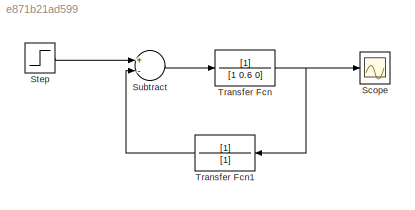
MODEL slx_e871b21ad599
KIND model
BLOCK [Scope] Scope
  Floating = off
  NumInputPorts = 1
  Ports = [1]
  ShowLegends = off
BLOCK [Step] Step
  Before = -2
  SampleTime = 0
  Time = .1
BLOCK [Sum] Subtract
  InputSameDT = off
  Inputs = +-
  OutDataTypeStr = Inherit: Inherit via internal rule
  Ports = [2, 1]
  SaturateOnIntegerOverflow = off
BLOCK [TransferFcn] Transfer Fcn
  Denominator = [1 0.6 0]
BLOCK [TransferFcn] Transfer Fcn1
  Denominator = [1]
LINE Step:1 -> Subtract:1
LINE Subtract:1 -> Transfer Fcn:1
LINE Transfer Fcn1:1 -> Subtract:2
NET Transfer Fcn:1 -> Scope:1, Transfer Fcn1:1
note: NET lines group one-source signal fan-out (src -> all destinations, sorted); 1:1 wires keep LINE
